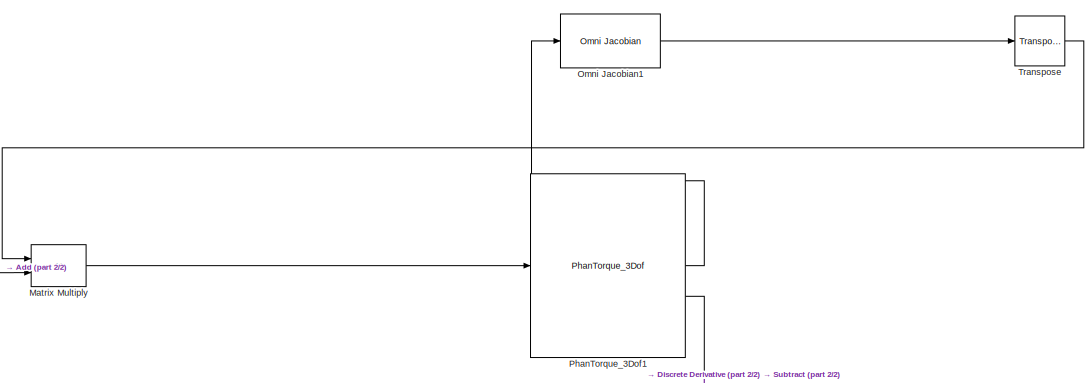
[diagram: root canvas - part 1/2, top right region]
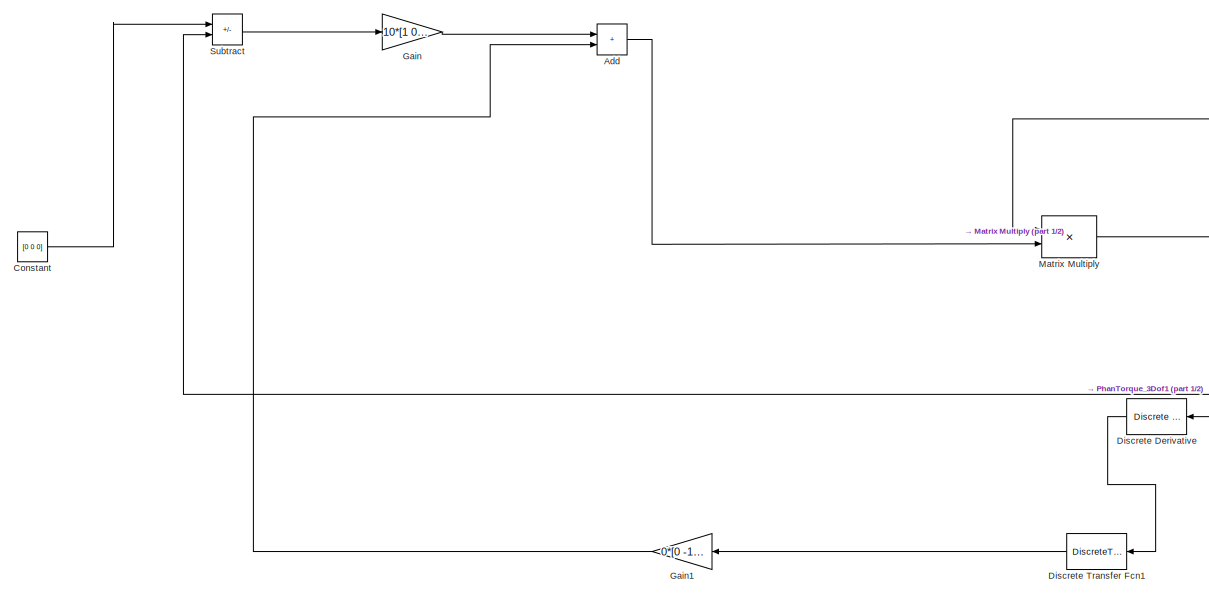
[diagram: root canvas - part 2/2, left side, full height]
MODEL slx_ab6c0cfed6c9
KIND model
CONFIG AbsTol = auto
CONFIG EnableMultiTasking = off
CONFIG FixedStep = 0.001
CONFIG MaxStep = auto
CONFIG MinStep = auto
CONFIG RelTol = 1e-3
CONFIG SampleTimeConstraint = Unconstrained
CONFIG SolverName = FixedStepDiscrete
CONFIG StartTime = 0.0
CONFIG StopTime = inf
BLOCK [Sum] Add
  IconShape = rectangular
BLOCK [Constant] Constant
  Value = [0 0 0]
BLOCK [Reference] Discrete Derivative  REF=simulink/Discrete/Discrete Derivative
  NameLocation = top
  SourceBlock = simulink/Discrete/Discrete Derivative
  SourceType = Discrete Derivative
BLOCK [DiscreteTransferFcn] Discrete Transfer Fcn1
  Denominator = [1 -(1-0.001/0.2)]
  InputPortMap = u0
  Numerator = [0.001/0.2]
BLOCK [Gain] Gain
  Gain = 10*[1 0 0; 0 1 0; 0 0 1]
  Multiplication = Matrix(K*u)
BLOCK [Gain] Gain1
  Gain = 0*[0 -1 0; 1 0 0; 0 0 0]
  Multiplication = Matrix(K*u)
BLOCK [Product] Matrix Multiply
  Multiplication = Matrix(*)
BLOCK [Reference] Omni Jacobian1  REF=PhanTorque_3Dof_Library_64Bits/Omni Jacobian
  SourceBlock = PhanTorque_3Dof_Library_64Bits/Omni Jacobian
BLOCK [Reference] PhanTorque_3Dof1  REF=PhanTorque_3Dof_Library_64Bits/PhanTorque_3Dof
  SourceBlock = PhanTorque_3Dof_Library_64Bits/PhanTorque_3Dof
BLOCK [Sum] Subtract
  IconShape = rectangular
  Inputs = +-
BLOCK [Reference] Transpose  REF=matrix_library/Transpose
  LibrarySourceBlock = simulink/Matrix\nOperations/Transpose
  SourceBlock = matrix_library/Transpose
  SourceType = Transpose
LINE Add:1 -> Matrix Multiply:2
LINE Constant:1 -> Subtract:1
LINE Discrete Derivative:1 -> Discrete Transfer Fcn1:1
LINE Discrete Transfer Fcn1:1 -> Gain1:1
LINE Gain1:1 -> Add:2
LINE Gain:1 -> Add:1
LINE Matrix Multiply:1 -> PhanTorque_3Dof1:1
LINE Omni Jacobian1:1 -> Transpose:1
LINE PhanTorque_3Dof1:1 -> Omni Jacobian1:1
NET PhanTorque_3Dof1:2 -> Discrete Derivative:1, Subtract:2
LINE Subtract:1 -> Gain:1
LINE Transpose:1 -> Matrix Multiply:1
note: NET lines group one-source signal fan-out (src -> all destinations, sorted); 1:1 wires keep LINE
